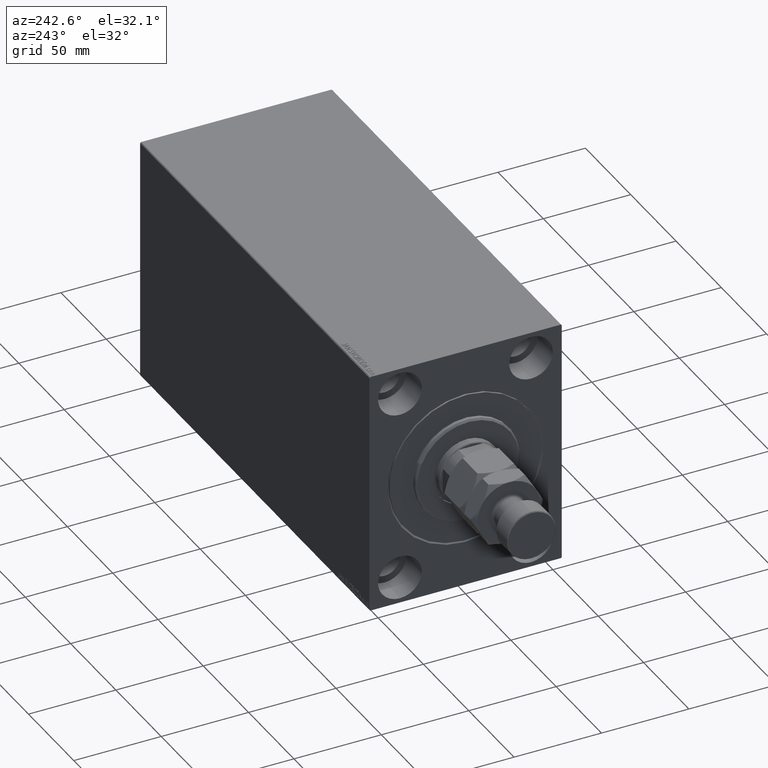
[diagram: clean part render]
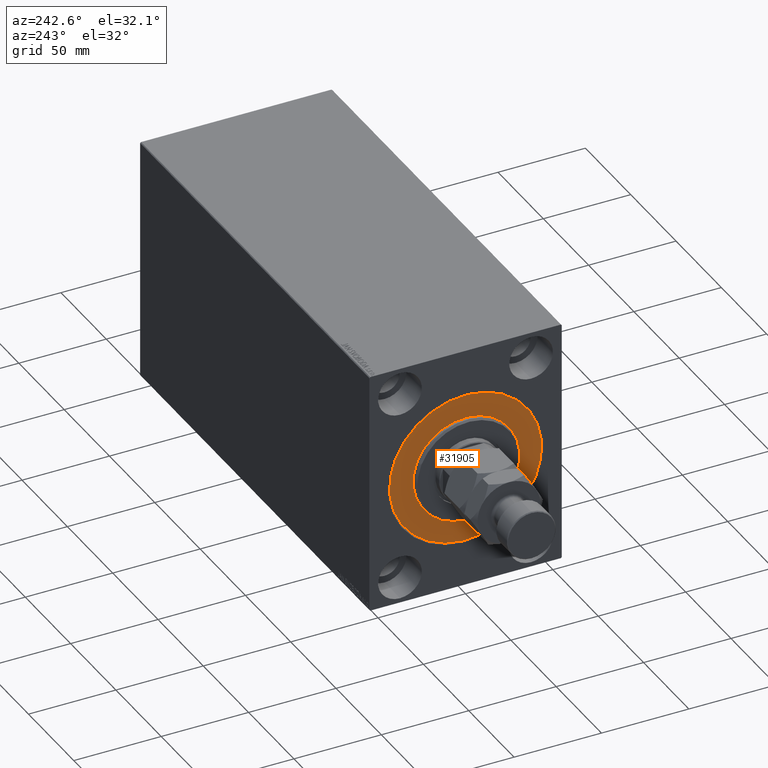
[diagram: same view with one face highlighted and labeled with its STEP entity id]
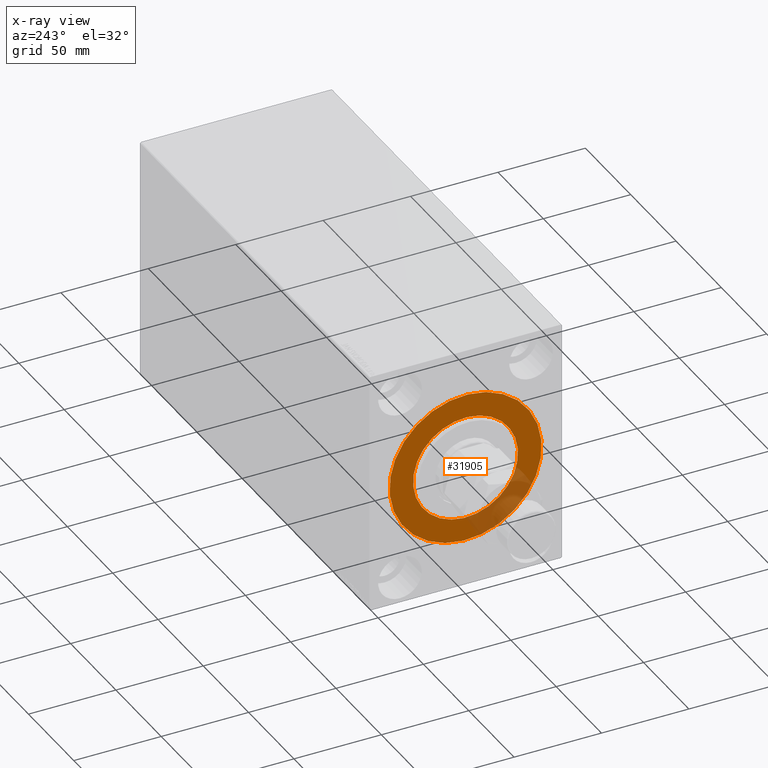
[diagram: x-ray of the same camera — body ghosted, the highlighted face saturated]
A machine part, auxiliary view. The second image highlights one B-rep face of the part: STEP entity #31905.
The next image is the same camera in x-ray: the body ghosted, the highlighted face saturated — about 17% of this face is hidden behind the body in this view.
In plain terms, the highlighted planar face has unit normal (1, 0, -0).
Its self-contained STEP definition (entity closure, byte-faithful):
#354 = VERTEX_POINT ( 'NONE', #15043 ) ;
#370 = FACE_BOUND ( 'NONE', #34512, .T. ) ;
#1335 = CIRCLE ( 'NONE', #30716, 30.00000000000000000 ) ;
#3368 = PLANE ( 'NONE',  #44640 ) ;
#4243 = DIRECTION ( 'NONE',  ( 0.000000000000000000, 0.000000000000000000, -1.000000000000000000 ) ) ;
#9268 = CARTESIAN_POINT ( 'NONE',  ( 0.000000000000000000, 3.673940397442059178E-15, -30.00000000000000000 ) ) ;
#9304 = AXIS2_PLACEMENT_3D ( 'NONE', #16034, #16694, #19706 ) ;
#9327 = ORIENTED_EDGE ( 'NONE', *, *, #29605, .F. ) ;
#9446 = VERTEX_POINT ( 'NONE', #9268 ) ;
#9772 = CARTESIAN_POINT ( 'NONE',  ( 0.000000000000000000, 0.000000000000000000, 0.000000000000000000 ) ) ;
#10137 = CIRCLE ( 'NONE', #19718, 30.00000000000000000 ) ;
#14151 = DIRECTION ( 'NONE',  ( 1.000000000000000000, -0.000000000000000000, 0.000000000000000000 ) ) ;
#15043 = CARTESIAN_POINT ( 'NONE',  ( 0.000000000000000000, 0.000000000000000000, 30.00000000000000000 ) ) ;
#15384 = DIRECTION ( 'NONE',  ( -1.000000000000000000, 0.000000000000000000, 0.000000000000000000 ) ) ;
#15944 = CIRCLE ( 'NONE', #42378, 43.50000000000000000 ) ;
#16034 = CARTESIAN_POINT ( 'NONE',  ( 0.000000000000000000, 0.000000000000000000, 0.000000000000000000 ) ) ;
#16444 = ORIENTED_EDGE ( 'NONE', *, *, #33065, .F. ) ;
#16694 = DIRECTION ( 'NONE',  ( -1.000000000000000000, 0.000000000000000000, 0.000000000000000000 ) ) ;
#18736 = VERTEX_POINT ( 'NONE', #42474 ) ;
#18845 = DIRECTION ( 'NONE',  ( 0.000000000000000000, 0.000000000000000000, 1.000000000000000000 ) ) ;
#19706 = DIRECTION ( 'NONE',  ( 0.000000000000000000, 0.000000000000000000, 1.000000000000000000 ) ) ;
#19718 = AXIS2_PLACEMENT_3D ( 'NONE', #9772, #37863, #44323 ) ;
#22549 = EDGE_LOOP ( 'NONE', ( #9327, #23449 ) ) ;
#23449 = ORIENTED_EDGE ( 'NONE', *, *, #25757, .F. ) ;
#24795 = DIRECTION ( 'NONE',  ( -1.000000000000000000, 0.000000000000000000, 0.000000000000000000 ) ) ;
#25757 = EDGE_CURVE ( 'NONE', #18736, #44453, #15944, .T. ) ;
#28472 = FACE_OUTER_BOUND ( 'NONE', #22549, .T. ) ;
#29183 = CIRCLE ( 'NONE', #9304, 43.50000000000000000 ) ;
#29605 = EDGE_CURVE ( 'NONE', #44453, #18736, #29183, .T. ) ;
#29702 = EDGE_CURVE ( 'NONE', #354, #9446, #10137, .T. ) ;
#29890 = CARTESIAN_POINT ( 'NONE',  ( 0.000000000000000000, 0.000000000000000000, 0.000000000000000000 ) ) ;
#30716 = AXIS2_PLACEMENT_3D ( 'NONE', #35782, #14151, #4243 ) ;
#31905 = ADVANCED_FACE ( 'NONE', ( #370, #28472 ), #3368, .F. ) ;
#33065 = EDGE_CURVE ( 'NONE', #9446, #354, #1335, .T. ) ;
#33287 = ORIENTED_EDGE ( 'NONE', *, *, #29702, .F. ) ;
#34512 = EDGE_LOOP ( 'NONE', ( #33287, #16444 ) ) ;
#35782 = CARTESIAN_POINT ( 'NONE',  ( 0.000000000000000000, 0.000000000000000000, 0.000000000000000000 ) ) ;
#37863 = DIRECTION ( 'NONE',  ( 1.000000000000000000, -0.000000000000000000, 0.000000000000000000 ) ) ;
#40478 = CARTESIAN_POINT ( 'NONE',  ( 0.000000000000000000, 0.000000000000000000, -43.50000000000000000 ) ) ;
#41829 = DIRECTION ( 'NONE',  ( 0.000000000000000000, 0.000000000000000000, 1.000000000000000000 ) ) ;
#42378 = AXIS2_PLACEMENT_3D ( 'NONE', #29890, #15384, #18845 ) ;
#42474 = CARTESIAN_POINT ( 'NONE',  ( 0.000000000000000000, 5.327213576290986044E-15, 43.50000000000000000 ) ) ;
#42735 = CARTESIAN_POINT ( 'NONE',  ( 0.000000000000000000, 0.000000000000000000, 0.000000000000000000 ) ) ;
#44323 = DIRECTION ( 'NONE',  ( 0.000000000000000000, 0.000000000000000000, -1.000000000000000000 ) ) ;
#44453 = VERTEX_POINT ( 'NONE', #40478 ) ;
#44640 = AXIS2_PLACEMENT_3D ( 'NONE', #42735, #24795, #41829 ) ;